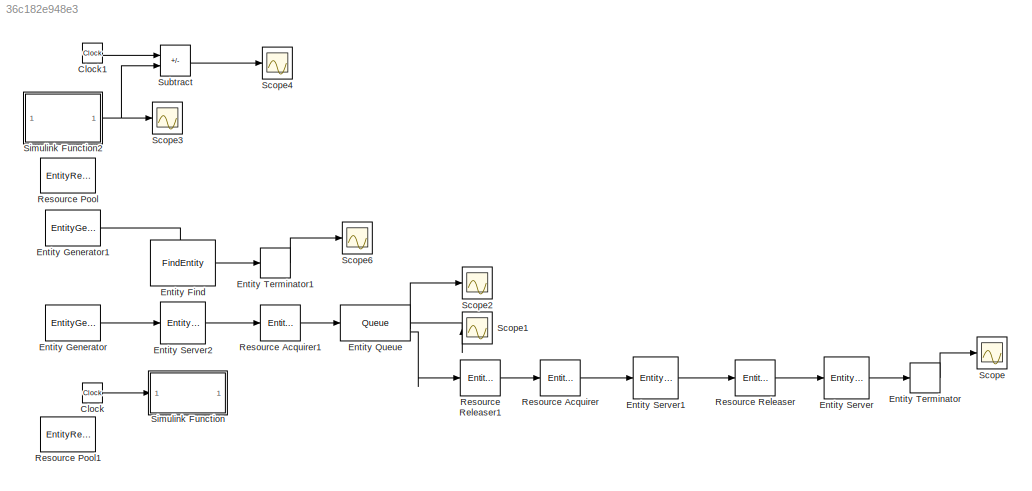
MODEL slx_36c182e948e3
KIND model
CONFIG AbsTol = auto
CONFIG EnableMultiTasking = off
CONFIG FixedStep = auto
CONFIG MaxStep = auto
CONFIG MinStep = auto
CONFIG RelTol = 1e-3
CONFIG SampleTimeConstraint = Unconstrained
CONFIG SolverName = VariableStepAuto
CONFIG StartTime = 0.0
CONFIG StopTime = 1000
BLOCK [Clock] Clock
BLOCK [Clock] Clock1
BLOCK [FindEntity] Entity Find
  EnableOutput = on
  EntityFilter = on
  InputPortMap = u0
  InputPortMessageModes = m
  MatchingCondition = % match = isequal(trigger.Attribute1, entity.Attribute1);\n\nnow = SetTime()\n\nmatch = (now-entity.timeStart)>entity.Trpelivost;
  OutputPortMap = o6
  OutputPortMessageModes = m
  ResourceName = Trpelivost
BLOCK [EntityGenerator] Entity Generator
  AttributeInitialValue = 1|1|1|3
  AttributeName = timeStart|timeEnd|timeCall|Trpelivost
  EntityType = Structured
  EntityTypeName = Zakaznik
  GenerateAction = persistent rngInit;\nif isempty(rngInit)\n    seed = 12345;\n    rng(seed);\n    rngInit = true;\nend\n\n% Pattern: Uniform distribution\n% m: Minimum, M: Maximum\nm = 5; M = 15;\nentity.timeCall = m + (M - m) * rand;
  IntergenerationTimeAction = dt = rand(1,1);\npersistent rngInit;\nif isempty(rngInit)\n    seed = 12345;\n    rng(seed);\n    rngInit = true;\nend\n\n% Pattern: Uniform distribution\n% m: Minimum, M: Maximum\nm = 0.1; M = 5;\ndt = m + (M - m) * rand;
  OutputPortMap = o3
  OutputPortMessageModes = m
  TimeSource = MATLAB action
BLOCK [EntityGenerator] Entity Generator1
  EntityType = Structured
  EntityTypeName = generator
  OutputPortMap = o3
  OutputPortMessageModes = m
  Period = 0.01
BLOCK [Queue] Entity Queue
  AverageWait = on
  Capacity = inf
  InputPortMap = u0
  InputPortMessageModes = m
  NumberEntitiesInBlock = on
  OutputPortMap = o1,o2,o5
  OutputPortMessageModes = n,n,m
BLOCK [EntityServer] Entity Server
  Capacity = inf
  ExitAction = ReadTime(entity.timeStart)
  InputPortMap = u2
  InputPortMessageModes = m
  OutputPortMap = o9
  OutputPortMessageModes = m
BLOCK [EntityServer] Entity Server1
  Capacity = inf
  InputPortMap = u2
  InputPortMessageModes = m
  OutputPortMap = o9
  OutputPortMessageModes = m
  ServiceTimeAttributeName = timeCall
  ServiceTimeSource = Attribute
BLOCK [EntityServer] Entity Server2
  Capacity = 1
  EntryAction = entity.timeStart = SetTime()
  InputPortMap = u2
  InputPortMessageModes = m
  OutputPortMap = o9
  OutputPortMessageModes = m
  ServiceTimeValue = 0
BLOCK [EntityTerminator] Entity Terminator
  InputPortMap = u0
  InputPortMessageModes = m
  NumberEntitiesArrived = on
  OutputPortMap = o0
BLOCK [EntityTerminator] Entity Terminator1
  InputPortMap = u0
  InputPortMessageModes = m
  NumberEntitiesArrived = on
  OutputPortMap = o0
BLOCK [EntityResourceAcquirer] Resource Acquirer
  InputPortMap = u0
  InputPortMessageModes = m
  OutputPortMap = o3
  OutputPortMessageModes = m
  ResourceName = numOfOperator
BLOCK [EntityResourceAcquirer] Resource Acquirer1
  InputPortMap = u0
  InputPortMessageModes = m
  OutputPortMap = o3
  OutputPortMessageModes = m
  ResourceName = Trpelivost
BLOCK [EntityResourcePool] Resource Pool
  ResourceAmount = 3
  ResourceName = numOfOperator
BLOCK [EntityResourcePool] Resource Pool1
  ResourceAmount = 1000
  ResourceName = Trpelivost
BLOCK [EntityResourceReleaser] Resource Releaser
  InputPortMap = u0
  InputPortMessageModes = m
  OutputPortMap = o0
  OutputPortMessageModes = m
  ResourceAmount = 1
  ResourceName = numOfOperator
  ResourceToRelease = Selected
BLOCK [EntityResourceReleaser] Resource Releaser1
  InputPortMap = u0
  InputPortMessageModes = m
  OutputPortMap = o0
  OutputPortMessageModes = m
  ResourceAmount = 1
  ResourceName = Trpelivost
  ResourceToRelease = Selected
BLOCK [Scope] Scope
  Floating = off
  NumInputPorts = 1
  ScopeSpecificationString = Simulink.scopes.TimeScopeBlockCfg('CurrentConfiguration', extmgr.ConfigurationSet(extmgr.Configuration('Core','General UI',true),extmgr.Configuration('Core','Source UI',true),extmgr.Configuration('Sources','WiredSimulink',true),extmgr.Configuration('Visuals','Time Domain',true,'SerializedDisplays',{struct('MinYLimReal','-34.625','MaxYLimReal','321.625','YLabelReal','','MinYLimMag','0.00000','MaxYL...<+1576ch>
BLOCK [Scope] Scope1
  Floating = off
  NumInputPorts = 1
  ScopeSpecificationString = Simulink.scopes.TimeScopeBlockCfg('CurrentConfiguration', extmgr.ConfigurationSet(extmgr.Configuration('Core','General UI',true),extmgr.Configuration('Core','Source UI',true),extmgr.Configuration('Sources','WiredSimulink',true,'DataLoggingVariableName','ScopeData1'),extmgr.Configuration('Visuals','Time Domain',true,'SerializedDisplays',{struct('MinYLimReal','-0.625','MaxYLimReal','5.625','YLabelRe...<+1602ch>
BLOCK [Scope] Scope2
  Floating = off
  NumInputPorts = 1
  ScopeSpecificationString = Simulink.scopes.TimeScopeBlockCfg('CurrentConfiguration', extmgr.ConfigurationSet(extmgr.Configuration('Core','General UI',true),extmgr.Configuration('Core','Source UI',true),extmgr.Configuration('Sources','WiredSimulink',true,'DataLoggingVariableName','ScopeData2'),extmgr.Configuration('Visuals','Time Domain',true,'SerializedDisplays',{struct('MinYLimReal','-0.20506','MaxYLimReal','1.84555','YLab...<+1612ch>
BLOCK [Scope] Scope3
  Floating = off
  NumInputPorts = 1
  ScopeSpecificationString = Simulink.scopes.TimeScopeBlockCfg('CurrentConfiguration', extmgr.ConfigurationSet(extmgr.Configuration('Core','General UI',true),extmgr.Configuration('Core','Source UI',true),extmgr.Configuration('Sources','WiredSimulink',true,'DataLoggingVariableName','ScopeData4'),extmgr.Configuration('Visuals','Time Domain',true,'SerializedDisplays',{struct('MinYLimReal','-122.73621','MaxYLimReal','1104.62593',...<+2429ch>
BLOCK [Scope] Scope4
  Floating = off
  NumInputPorts = 1
  ScopeSpecificationString = Simulink.scopes.TimeScopeBlockCfg('CurrentConfiguration', extmgr.ConfigurationSet(extmgr.Configuration('Core','General UI',true),extmgr.Configuration('Core','Source UI',true),extmgr.Configuration('Sources','WiredSimulink',true,'DataLoggingVariableName','ScopeData5'),extmgr.Configuration('Visuals','Time Domain',true,'SerializedDisplays',{struct('MinYLimReal','-4.1262','MaxYLimReal','37.13584','YLab...<+2403ch>
BLOCK [Scope] Scope6
  Floating = off
  NumInputPorts = 1
  ScopeSpecificationString = Simulink.scopes.TimeScopeBlockCfg('CurrentConfiguration', extmgr.ConfigurationSet(extmgr.Configuration('Core','General UI',true),extmgr.Configuration('Core','Source UI',true),extmgr.Configuration('Sources','WiredSimulink',true,'DataLoggingVariableName','ScopeData3'),extmgr.Configuration('Visuals','Time Domain',true,'SerializedDisplays',{struct('MinYLimReal','-13.25','MaxYLimReal','129.25','YLabelR...<+2403ch>
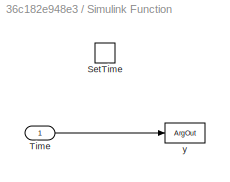
BLOCK [SubSystem] Simulink Function
  TreatAsAtomicUnit = on
BLOCK [TriggerPort] Simulink Function/SetTime
  FunctionName = SetTime
  FunctionVisibility = scoped
  IsSimulinkFunction = on
  StatesWhenEnabling = held
  TriggerType = function-call
  VariantControl = (inherit)
BLOCK [Inport] Simulink Function/Time
BLOCK [ArgOut] Simulink Function/y
  ArgumentName = y
  DisableCoverage = on
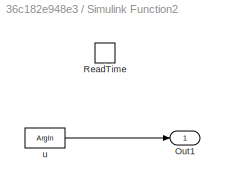
BLOCK [SubSystem] Simulink Function2
  TreatAsAtomicUnit = on
BLOCK [Outport] Simulink Function2/Out1
BLOCK [TriggerPort] Simulink Function2/ReadTime
  FunctionName = ReadTime
  FunctionVisibility = scoped
  IsSimulinkFunction = on
  StatesWhenEnabling = held
  TriggerType = function-call
  VariantControl = (inherit)
BLOCK [ArgIn] Simulink Function2/u
  ArgumentName = u
  DisableCoverage = on
BLOCK [Sum] Subtract
  IconShape = rectangular
  Inputs = +-
LINE Clock1:1 -> Subtract:1
LINE Clock:1 -> Simulink Function:1
LINE Entity Find:1 -> Entity Terminator1:1
LINE Entity Generator1:1 -> Entity Find:1
LINE Entity Generator:1 -> Entity Server2:1
LINE Entity Queue:1 -> Scope1:1
LINE Entity Queue:2 -> Scope2:1
LINE Entity Queue:3 -> Resource Releaser1:1
LINE Entity Server1:1 -> Resource Releaser:1
LINE Entity Server2:1 -> Resource Acquirer1:1
LINE Entity Server:1 -> Entity Terminator:1
LINE Entity Terminator1:1 -> Scope6:1
LINE Entity Terminator:1 -> Scope:1
LINE Resource Acquirer1:1 -> Entity Queue:1
LINE Resource Acquirer:1 -> Entity Server1:1
LINE Resource Releaser1:1 -> Resource Acquirer:1
LINE Resource Releaser:1 -> Entity Server:1
LINE Simulink Function/Time:1 -> Simulink Function/y:1
LINE Simulink Function2/u:1 -> Simulink Function2/Out1:1
NET Simulink Function2:1 -> Scope3:1, Subtract:2
LINE Subtract:1 -> Scope4:1
note: NET lines group one-source signal fan-out (src -> all destinations, sorted); 1:1 wires keep LINE
